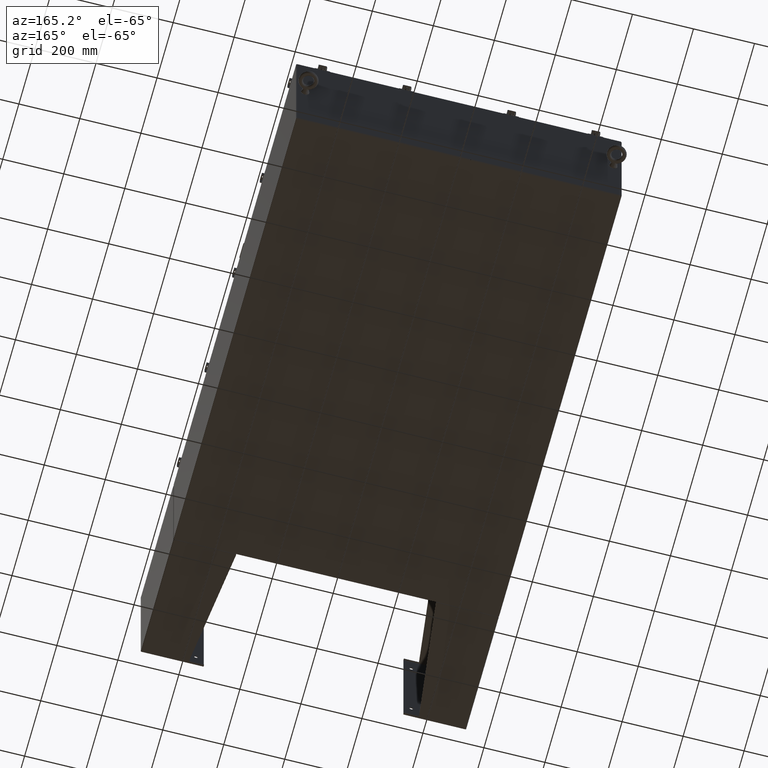
[diagram: clean part render]
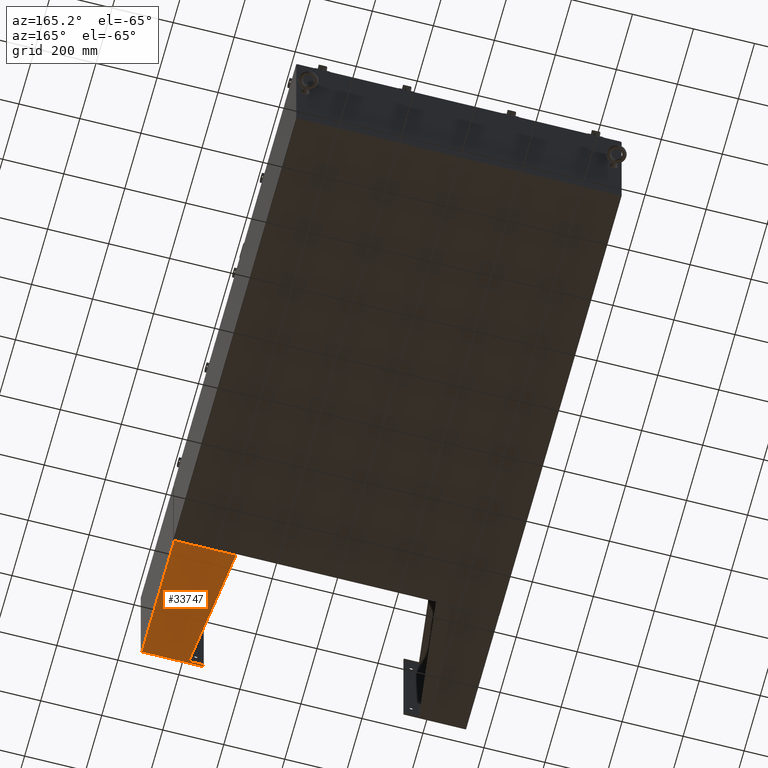
[diagram: same view with one face highlighted and labeled with its STEP entity id]
A machine part, auxiliary view. The second image highlights one B-rep face of the part: STEP entity #33747.
In plain terms, the highlighted planar face has unit normal (-0, 0, 1).
Its self-contained STEP definition (entity closure, byte-faithful):
#427 = VECTOR ( 'NONE', #50441, 39.37007874015748100 ) ;
#464 = LINE ( 'NONE', #67638, #26830 ) ;
#2353 = EDGE_CURVE ( 'NONE', #19558, #30539, #20776, .T. ) ;
#3156 = VERTEX_POINT ( 'NONE', #67141 ) ;
#3274 = DIRECTION ( 'NONE',  ( 3.550958521948298200E-015, 0.0000000000000000000, -1.000000000000000000 ) ) ;
#4856 = ORIENTED_EDGE ( 'NONE', *, *, #56617, .T. ) ;
#5276 = CARTESIAN_POINT ( 'NONE',  ( -8.000000000000026600, -7.750000000000000000, 8.000999999999997700 ) ) ;
#6434 = CARTESIAN_POINT ( 'NONE',  ( -8.000000000000026600, 8.000000000000001800, 8.000999999999997700 ) ) ;
#11748 = DIRECTION ( 'NONE',  ( 0.0000000000000000000, 1.000000000000000000, 0.0000000000000000000 ) ) ;
#11934 = CARTESIAN_POINT ( 'NONE',  ( -8.000000000000019500, -7.749999999999999100, 6.052216497445926700 ) ) ;
#13477 = DIRECTION ( 'NONE',  ( 3.550958521948298200E-015, 0.0000000000000000000, -1.000000000000000000 ) ) ;
#14189 = VECTOR ( 'NONE', #64618, 39.37007874015748100 ) ;
#16722 = CARTESIAN_POINT ( 'NONE',  ( -8.000000000000012400, 7.857000000000001100, 0.03900000000000469100 ) ) ;
#17272 = DIRECTION ( 'NONE',  ( -4.399772607369800400E-016, 0.9922942345449394800, 0.1239038017531047900 ) ) ;
#19099 = CARTESIAN_POINT ( 'NONE',  ( -8.000000000000026600, -7.999999999999999100, 8.000999999999997700 ) ) ;
#19558 = VERTEX_POINT ( 'NONE', #58876 ) ;
#20776 = LINE ( 'NONE', #5276, #34706 ) ;
#21248 = ORIENTED_EDGE ( 'NONE', *, *, #62823, .F. ) ;
#22696 = AXIS2_PLACEMENT_3D ( 'NONE', #29053, #44929, #13477 ) ;
#22710 = ORIENTED_EDGE ( 'NONE', *, *, #42528, .T. ) ;
#22974 = ORIENTED_EDGE ( 'NONE', *, *, #2353, .T. ) ;
#23828 = PLANE ( 'NONE',  #22696 ) ;
#25624 = VERTEX_POINT ( 'NONE', #37393 ) ;
#25914 = DIRECTION ( 'NONE',  ( 0.0000000000000000000, 1.000000000000000000, 0.0000000000000000000 ) ) ;
#26805 = LINE ( 'NONE', #19099, #427 ) ;
#26830 = VECTOR ( 'NONE', #25914, 39.37007874015748100 ) ;
#27570 = CARTESIAN_POINT ( 'NONE',  ( -8.000000000000019500, -7.750000000000000000, 6.052216497445926700 ) ) ;
#29053 = CARTESIAN_POINT ( 'NONE',  ( -8.000000000000026600, 8.000000000000001800, 8.000999999999997700 ) ) ;
#30539 = VERTEX_POINT ( 'NONE', #27570 ) ;
#30561 = EDGE_CURVE ( 'NONE', #30539, #3156, #34339, .T. ) ;
#30838 = VERTEX_POINT ( 'NONE', #50622 ) ;
#31882 = EDGE_LOOP ( 'NONE', ( #22974, #41780, #22710, #21248, #55588, #4856 ) ) ;
#33747 = ADVANCED_FACE ( 'NONE', ( #33929 ), #23828, .F. ) ;
#33929 = FACE_OUTER_BOUND ( 'NONE', #31882, .T. ) ;
#34339 = LINE ( 'NONE', #11934, #60436 ) ;
#34706 = VECTOR ( 'NONE', #3274, 39.37007874015748100 ) ;
#36721 = EDGE_CURVE ( 'NONE', #25624, #30838, #26805, .T. ) ;
#37393 = CARTESIAN_POINT ( 'NONE',  ( -7.999999999999999100, -7.999999999999999100, 0.03899999999999813300 ) ) ;
#41780 = ORIENTED_EDGE ( 'NONE', *, *, #30561, .T. ) ;
#42528 = EDGE_CURVE ( 'NONE', #3156, #43676, #55860, .T. ) ;
#43676 = VERTEX_POINT ( 'NONE', #16722 ) ;
#44929 = DIRECTION ( 'NONE',  ( 1.000000000000000000, 0.0000000000000000000, 3.550958521948298200E-015 ) ) ;
#50441 = DIRECTION ( 'NONE',  ( -3.550958521948298200E-015, 0.0000000000000000000, 1.000000000000000000 ) ) ;
#50622 = CARTESIAN_POINT ( 'NONE',  ( -8.000000000000026600, -7.999999999999999100, 8.000999999999997700 ) ) ;
#54106 = CARTESIAN_POINT ( 'NONE',  ( -8.000000000000012400, 7.857000000000001100, 8.000999999999997700 ) ) ;
#55588 = ORIENTED_EDGE ( 'NONE', *, *, #36721, .T. ) ;
#55860 = LINE ( 'NONE', #54106, #14189 ) ;
#56617 = EDGE_CURVE ( 'NONE', #30838, #19558, #67358, .T. ) ;
#58876 = CARTESIAN_POINT ( 'NONE',  ( -8.000000000000026600, -7.750000000000000000, 8.001000000000006600 ) ) ;
#60436 = VECTOR ( 'NONE', #17272, 39.37007874015748100 ) ;
#62823 = EDGE_CURVE ( 'NONE', #25624, #43676, #464, .T. ) ;
#64116 = VECTOR ( 'NONE', #11748, 39.37007874015748100 ) ;
#64618 = DIRECTION ( 'NONE',  ( 0.0000000000000000000, 0.0000000000000000000, -1.000000000000000000 ) ) ;
#67141 = CARTESIAN_POINT ( 'NONE',  ( -8.000000000000026600, 7.857000000000001100, 8.000999999999997700 ) ) ;
#67358 = LINE ( 'NONE', #6434, #64116 ) ;
#67638 = CARTESIAN_POINT ( 'NONE',  ( -7.999999999999999100, 8.000000000000001800, 0.03899999999999923000 ) ) ;